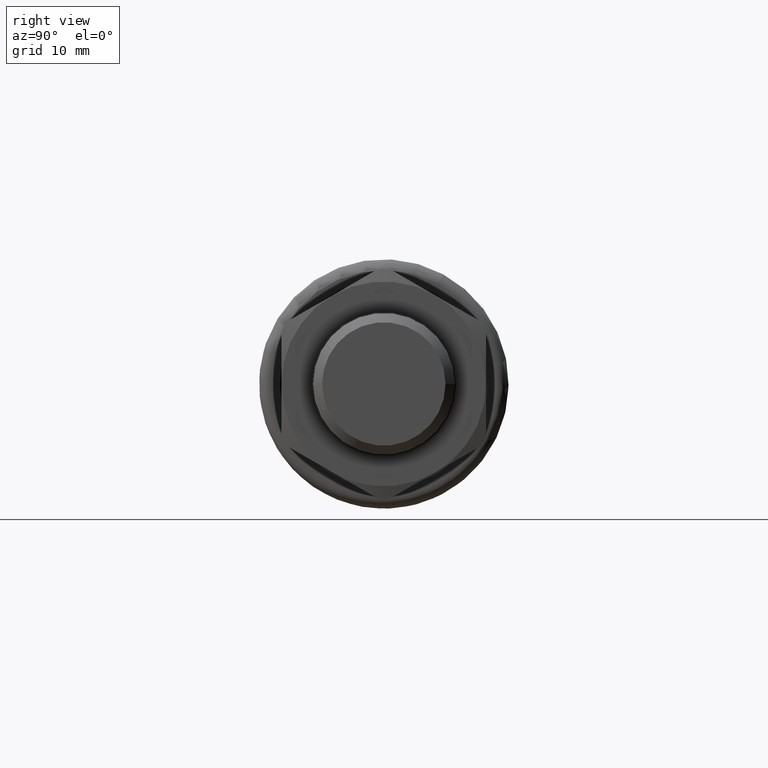
[diagram: clean part render]
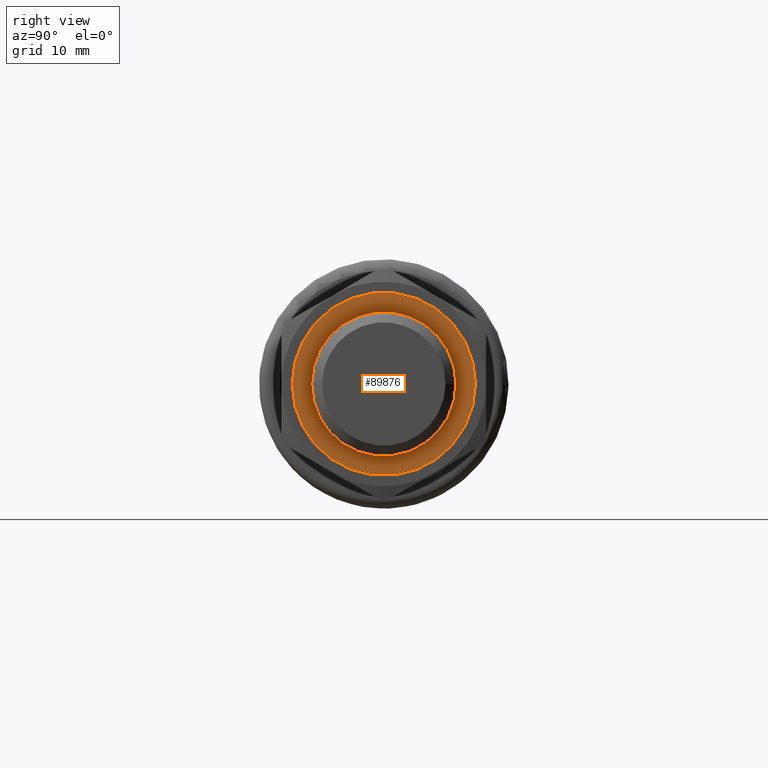
[diagram: same view with one face highlighted and labeled with its STEP entity id]
A machine part, right view. The second image highlights one B-rep face of the part: STEP entity #89876.
In plain terms, the highlighted planar face has unit normal (1, 0, 0).
Its self-contained STEP definition (entity closure, byte-faithful):
#89845=CARTESIAN_POINT('',(48.999999999999993,8.499999999999972,-1.676329E-030));
#89846=VERTEX_POINT('',#89845);
#89847=CARTESIAN_POINT('',(48.999999999999993,-2.968902E-014,1.263617E-045));
#89848=DIRECTION('',(-1.0,0.0,0.0));
#89849=DIRECTION('',(0.0,1.0,0.0));
#89850=AXIS2_PLACEMENT_3D('',#89847,#89848,#89849);
#89851=CIRCLE('',#89850,8.5);
#89852=EDGE_CURVE('',#89846,#89846,#89851,.T.);
#89857=CARTESIAN_POINT('',(48.999999999999993,7.59999999999997,-1.498836E-030));
#89858=DIRECTION('',(1.0,0.0,0.0));
#89859=DIRECTION('',(0.0,0.0,-1.0));
#89860=AXIS2_PLACEMENT_3D('',#89857,#89858,#89859);
#89861=PLANE('',#89860);
#89862=ORIENTED_EDGE('',*,*,#89852,.F.);
#89863=EDGE_LOOP('',(#89862));
#89864=FACE_OUTER_BOUND('',#89863,.T.);
#89865=CARTESIAN_POINT('',(48.999999999999993,6.699999999999971,-1.321342E-030));
#89866=VERTEX_POINT('',#89865);
#89867=CARTESIAN_POINT('',(48.999999999999993,-2.968902E-014,1.263617E-045));
#89868=DIRECTION('',(-1.0,0.0,0.0));
#89869=DIRECTION('',(0.0,1.0,0.0));
#89870=AXIS2_PLACEMENT_3D('',#89867,#89868,#89869);
#89871=CIRCLE('',#89870,6.7);
#89872=EDGE_CURVE('',#89866,#89866,#89871,.T.);
#89873=ORIENTED_EDGE('',*,*,#89872,.T.);
#89874=EDGE_LOOP('',(#89873));
#89875=FACE_BOUND('',#89874,.T.);
#89876=ADVANCED_FACE('',(#89864,#89875),#89861,.T.);